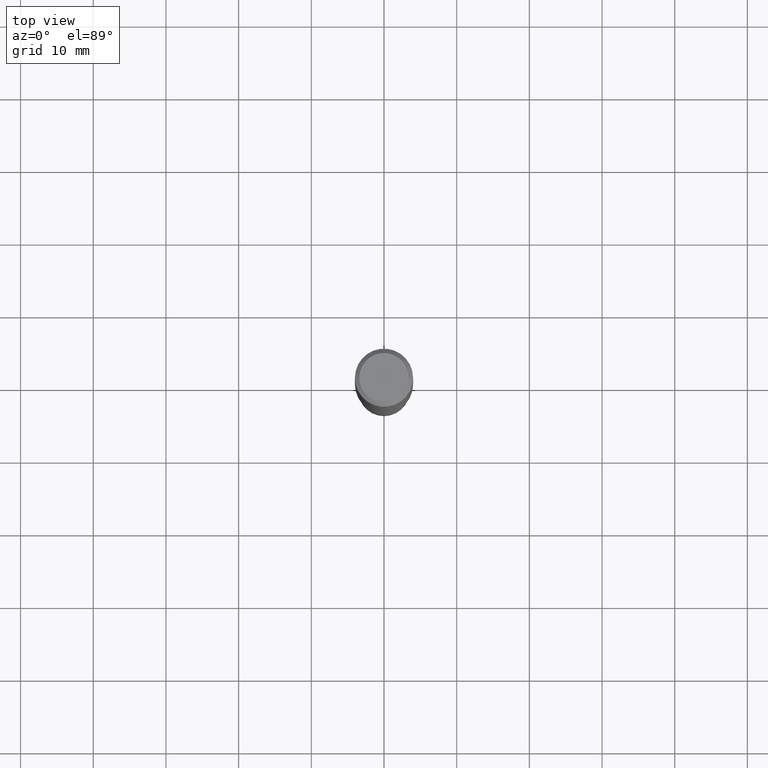
[diagram: clean part render]
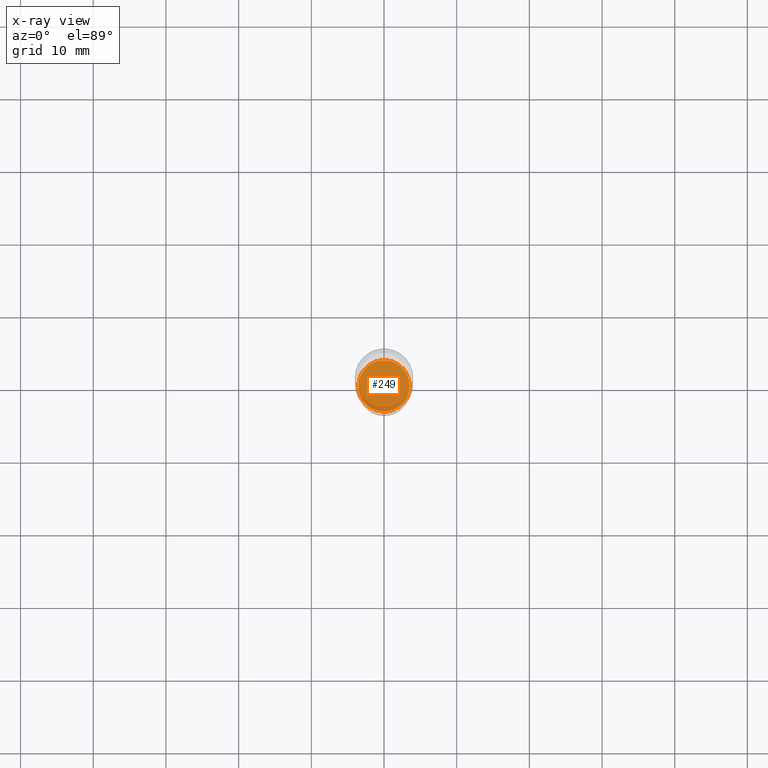
[diagram: x-ray — body ghosted, one internal face saturated and labeled with its STEP entity id]
A machine part, top view, then the same camera in x-ray: the body is ghosted and one INTERNAL B-rep face — a face not visible from any outside direction — is saturated and labeled: STEP entity #249.
In plain terms, the highlighted planar face has unit normal (-0, 0, 1).
Its self-contained STEP definition (entity closure, byte-faithful):
#15 = CIRCLE ( 'NONE', #206, 0.1392500000000000127 ) ;
#34 = VERTEX_POINT ( 'NONE', #96 ) ;
#44 = DIRECTION ( 'NONE',  ( -2.438088387897960049E-29, 3.491481338843145188E-15, 1.000000000000000000 ) ) ;
#71 = DIRECTION ( 'NONE',  ( 1.000000000000000000, -6.982962677686260400E-15, 0.000000000000000000 ) ) ;
#85 = ORIENTED_EDGE ( 'NONE', *, *, #444, .F. ) ;
#96 = CARTESIAN_POINT ( 'NONE',  ( 0.1392500000000000127, -9.976907925744284959E-15, -2.579000000000000181 ) ) ;
#126 = DIRECTION ( 'NONE',  ( 1.000000000000000000, -6.982962677686265922E-15, 4.876176775795935793E-29 ) ) ;
#150 = VERTEX_POINT ( 'NONE', #260 ) ;
#151 = EDGE_LOOP ( 'NONE', ( #85, #268 ) ) ;
#184 = CARTESIAN_POINT ( 'NONE',  ( 6.306864051151467131E-29, -9.004530372876471973E-15, -2.579000000000000181 ) ) ;
#190 = DIRECTION ( 'NONE',  ( -2.445468806185136597E-29, 3.491481338843145583E-15, 1.000000000000000000 ) ) ;
#206 = AXIS2_PLACEMENT_3D ( 'NONE', #390, #220, #264 ) ;
#220 = DIRECTION ( 'NONE',  ( -2.445468806185136597E-29, 3.491481338843145583E-15, 1.000000000000000000 ) ) ;
#237 = AXIS2_PLACEMENT_3D ( 'NONE', #184, #190, #71 ) ;
#238 = FACE_OUTER_BOUND ( 'NONE', #151, .T. ) ;
#249 = ADVANCED_FACE ( 'NONE', ( #238 ), #408, .F. ) ;
#260 = CARTESIAN_POINT ( 'NONE',  ( -0.1392500000000000127, -8.012450386156421370E-15, -2.579000000000000181 ) ) ;
#264 = DIRECTION ( 'NONE',  ( 1.000000000000000000, -6.982962677686260400E-15, 0.000000000000000000 ) ) ;
#268 = ORIENTED_EDGE ( 'NONE', *, *, #460, .F. ) ;
#313 = CARTESIAN_POINT ( 'NONE',  ( 6.306864051151467131E-29, -9.004530372876471973E-15, -2.579000000000000181 ) ) ;
#315 = AXIS2_PLACEMENT_3D ( 'NONE', #313, #44, #126 ) ;
#390 = CARTESIAN_POINT ( 'NONE',  ( 6.306864051151467131E-29, -9.004530372876471973E-15, -2.579000000000000181 ) ) ;
#408 = PLANE ( 'NONE',  #315 ) ;
#424 = CIRCLE ( 'NONE', #237, 0.1392500000000000127 ) ;
#444 = EDGE_CURVE ( 'NONE', #34, #150, #424, .T. ) ;
#460 = EDGE_CURVE ( 'NONE', #150, #34, #15, .T. ) ;